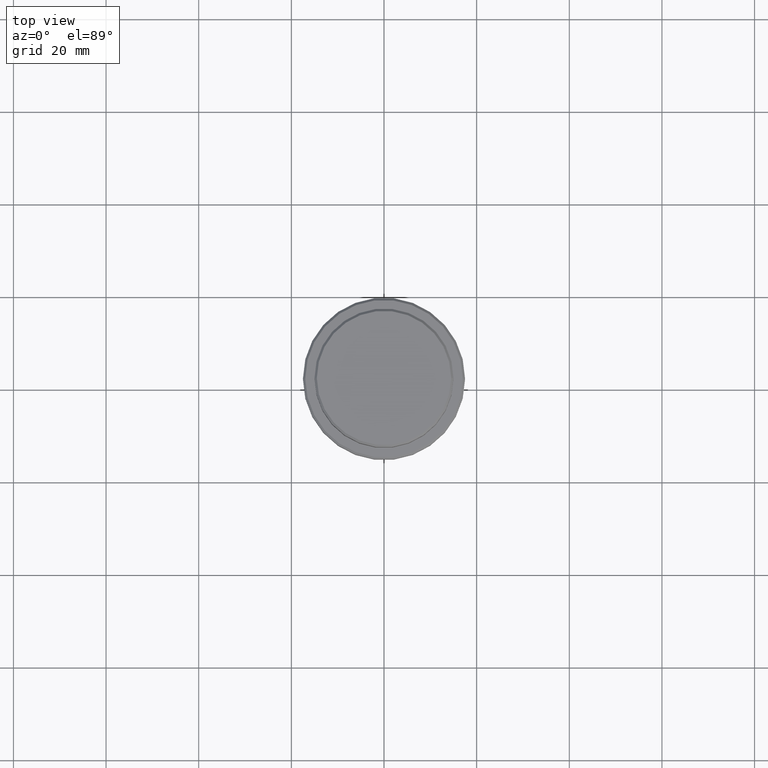
[diagram: clean part render]
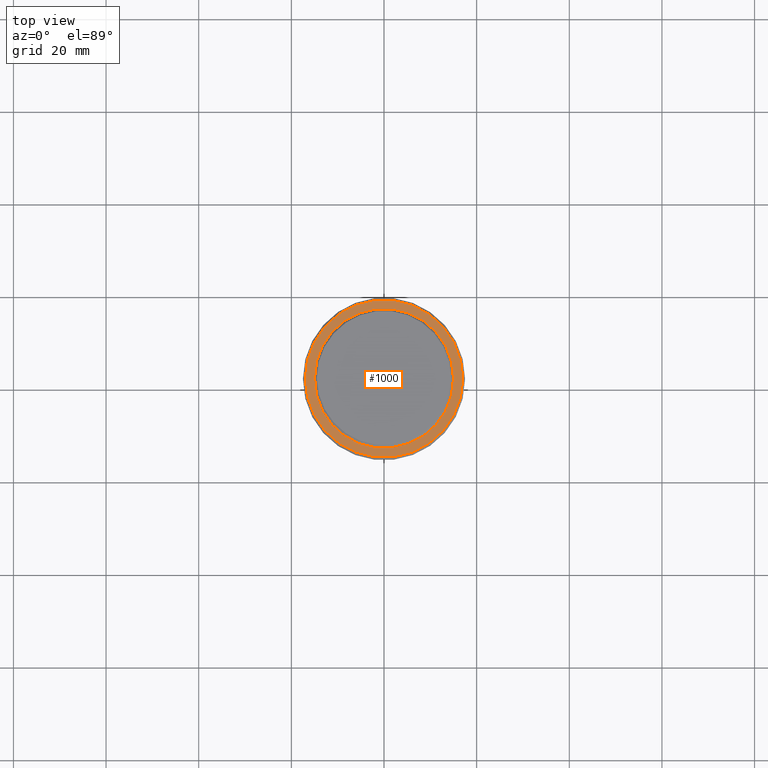
[diagram: same view with one face highlighted and labeled with its STEP entity id]
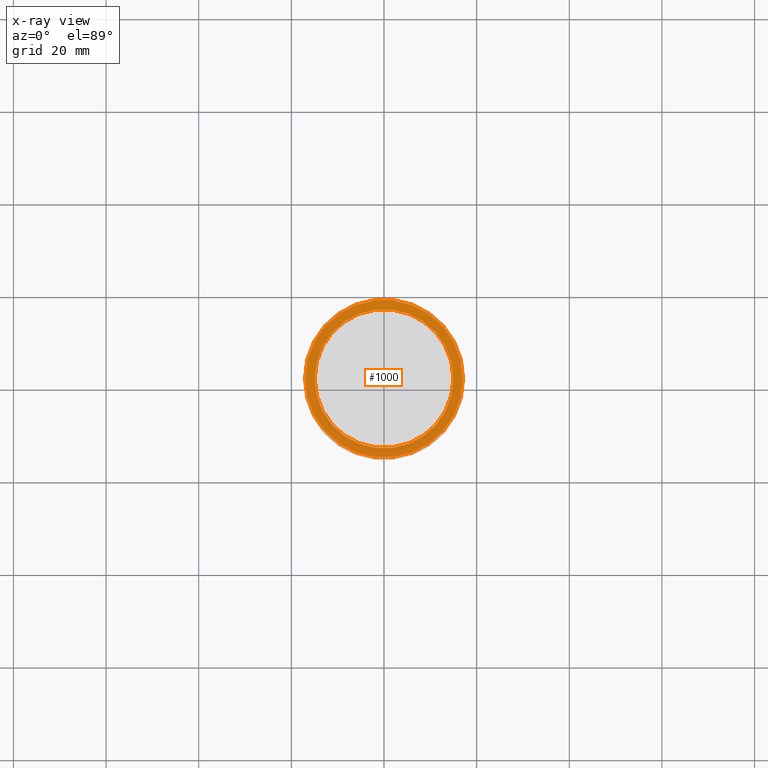
[diagram: x-ray of the same camera — body ghosted, the highlighted face saturated]
A machine part, top view. The second image highlights one B-rep face of the part: STEP entity #1000.
The next image is the same camera in x-ray: the body ghosted, the highlighted face saturated — about 0% of this face is hidden behind the body in this view.
In plain terms, the highlighted planar face has unit normal (0, -0, 1).
Its self-contained STEP definition (entity closure, byte-faithful):
#47 = AXIS2_PLACEMENT_3D ( 'NONE', #798, #477, #229 ) ;
#97 = DIRECTION ( 'NONE',  ( 0.000000000000000000, 0.000000000000000000, -1.000000000000000000 ) ) ;
#112 = EDGE_CURVE ( 'NONE', #315, #1133, #1009, .T. ) ;
#161 = EDGE_CURVE ( 'NONE', #350, #478, #1190, .T. ) ;
#186 = DIRECTION ( 'NONE',  ( -0.000000000000000000, -0.000000000000000000, 1.000000000000000000 ) ) ;
#201 = CARTESIAN_POINT ( 'NONE',  ( 0.000000000000000000, 0.000000000000000000, -8.999999999999987566 ) ) ;
#229 = DIRECTION ( 'NONE',  ( 1.000000000000000000, 0.000000000000000000, 0.000000000000000000 ) ) ;
#250 = EDGE_CURVE ( 'NONE', #478, #350, #696, .T. ) ;
#267 = AXIS2_PLACEMENT_3D ( 'NONE', #528, #1274, #299 ) ;
#299 = DIRECTION ( 'NONE',  ( 1.000000000000000000, 0.000000000000000000, 0.000000000000000000 ) ) ;
#315 = VERTEX_POINT ( 'NONE', #665 ) ;
#350 = VERTEX_POINT ( 'NONE', #1362 ) ;
#390 = CARTESIAN_POINT ( 'NONE',  ( 0.000000000000000000, 0.000000000000000000, -8.999999999999987566 ) ) ;
#401 = FACE_BOUND ( 'NONE', #1006, .T. ) ;
#412 = ORIENTED_EDGE ( 'NONE', *, *, #112, .T. ) ;
#446 = AXIS2_PLACEMENT_3D ( 'NONE', #390, #1346, #801 ) ;
#477 = DIRECTION ( 'NONE',  ( 0.000000000000000000, 0.000000000000000000, -1.000000000000000000 ) ) ;
#478 = VERTEX_POINT ( 'NONE', #1406 ) ;
#528 = CARTESIAN_POINT ( 'NONE',  ( 0.000000000000000000, 14.49999999999999467, -8.999999999999987566 ) ) ;
#534 = ORIENTED_EDGE ( 'NONE', *, *, #892, .T. ) ;
#626 = AXIS2_PLACEMENT_3D ( 'NONE', #1415, #186, #1060 ) ;
#645 = CARTESIAN_POINT ( 'NONE',  ( 16.99999999999997513, 2.112515728529182883E-15, -8.999999999999987566 ) ) ;
#665 = CARTESIAN_POINT ( 'NONE',  ( -16.99999999999997513, 0.000000000000000000, -8.999999999999987566 ) ) ;
#696 = CIRCLE ( 'NONE', #47, 14.99999999999999467 ) ;
#772 = DIRECTION ( 'NONE',  ( 1.000000000000000000, 0.000000000000000000, 0.000000000000000000 ) ) ;
#798 = CARTESIAN_POINT ( 'NONE',  ( 0.000000000000000000, 0.000000000000000000, -8.999999999999987566 ) ) ;
#801 = DIRECTION ( 'NONE',  ( 1.000000000000000000, 0.000000000000000000, 0.000000000000000000 ) ) ;
#840 = PLANE ( 'NONE',  #267 ) ;
#892 = EDGE_CURVE ( 'NONE', #1133, #315, #920, .T. ) ;
#920 = CIRCLE ( 'NONE', #446, 16.99999999999997513 ) ;
#1000 = ADVANCED_FACE ( 'NONE', ( #1378, #401 ), #840, .T. ) ;
#1006 = EDGE_LOOP ( 'NONE', ( #1022, #1273 ) ) ;
#1009 = CIRCLE ( 'NONE', #626, 16.99999999999997513 ) ;
#1022 = ORIENTED_EDGE ( 'NONE', *, *, #250, .T. ) ;
#1060 = DIRECTION ( 'NONE',  ( 1.000000000000000000, 0.000000000000000000, 0.000000000000000000 ) ) ;
#1133 = VERTEX_POINT ( 'NONE', #645 ) ;
#1158 = AXIS2_PLACEMENT_3D ( 'NONE', #201, #97, #772 ) ;
#1190 = CIRCLE ( 'NONE', #1158, 14.99999999999999467 ) ;
#1273 = ORIENTED_EDGE ( 'NONE', *, *, #161, .T. ) ;
#1274 = DIRECTION ( 'NONE',  ( 0.000000000000000000, -0.000000000000000000, 1.000000000000000000 ) ) ;
#1346 = DIRECTION ( 'NONE',  ( -0.000000000000000000, -0.000000000000000000, 1.000000000000000000 ) ) ;
#1350 = EDGE_LOOP ( 'NONE', ( #412, #534 ) ) ;
#1362 = CARTESIAN_POINT ( 'NONE',  ( -14.99999999999999467, 1.836970198721029194E-15, -8.999999999999987566 ) ) ;
#1378 = FACE_OUTER_BOUND ( 'NONE', #1350, .T. ) ;
#1406 = CARTESIAN_POINT ( 'NONE',  ( 14.99999999999999467, 0.000000000000000000, -8.999999999999987566 ) ) ;
#1415 = CARTESIAN_POINT ( 'NONE',  ( 0.000000000000000000, 0.000000000000000000, -8.999999999999987566 ) ) ;